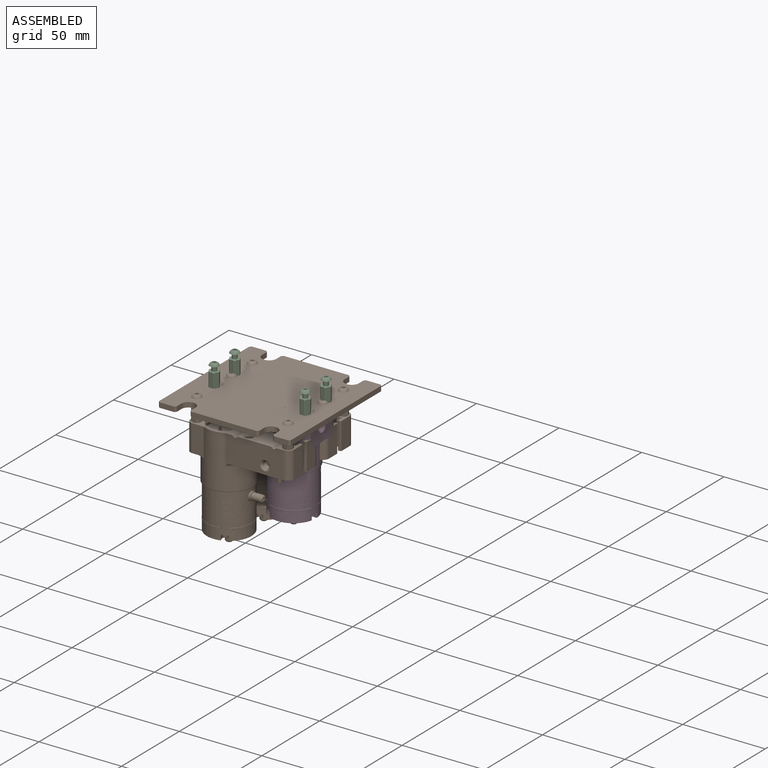
[diagram: assembled view]
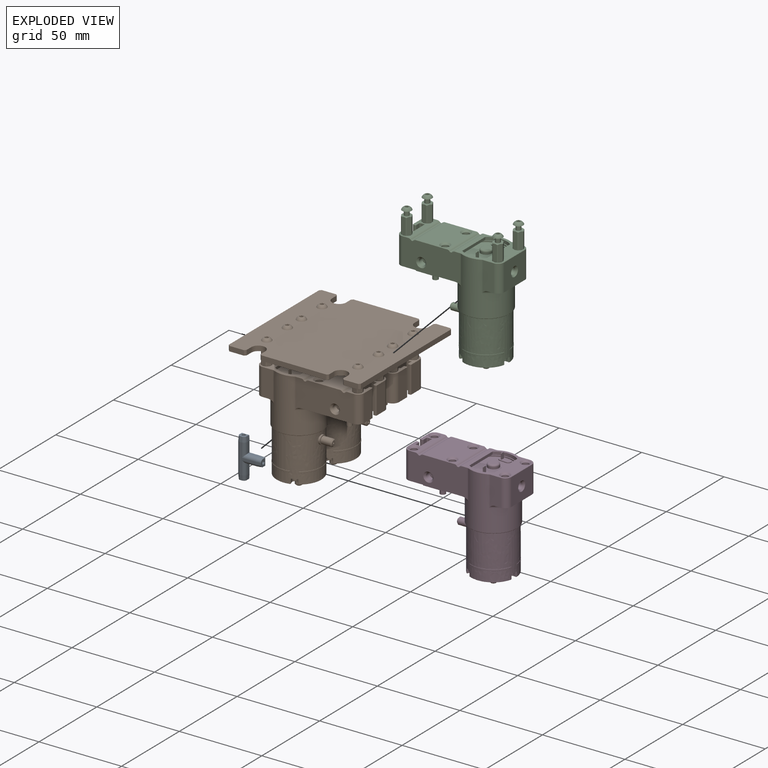
[diagram: exploded view]
GUIDED TOUR — FREECAD ASSEMBLY "pump-assembled"

This assembly has 4 components, labeled P0..P3 below (a component is one placed body or linked part; the same part can appear more than once), held together by 0 modeled joints plus 6 derived contact edges. A joint is a constraint between two components; its type names the relative motion it leaves free:
  CONTACT — a derived adjacency edge — the two components touch in the source model (clearance under 2% of the assembly's diagonal); it is measured from the geometry, not a modeled constraint.
Axis/direction vectors are unit vectors and 'through' points are millimeter coordinates, both in the assembly's world frame.

MATES
  1. CONTACT "contact_0_1": P0 <-> P1, contact direction (0.708, 0.000, 0.706) through (-18.06, -1.85, -48.28) mm (derived from contact, not a modeled constraint)
  2. CONTACT "contact_0_2": P0 <-> P2, contact direction (0.708, 0.000, 0.706) through (-16.63, 0.73, -23.82) mm (derived from contact, not a modeled constraint)
  3. CONTACT "contact_0_3": P0 <-> P3, contact direction (1.000, 0.000, 0.000) through (-15.92, -1.07, -23.82) mm (derived from contact, not a modeled constraint)
  4. CONTACT "contact_1_2": P1 <-> P2, contact direction (0.708, 0.000, 0.706) through (-13.75, 12.25, -10.38) mm (derived from contact, not a modeled constraint)
  5. CONTACT "contact_1_3": P1 <-> P3, contact direction (1.000, 0.000, 0.000) through (-13.98, 11.92, -10.63) mm (derived from contact, not a modeled constraint)
  6. CONTACT "contact_2_3": P2 <-> P3, contact direction (0.000, 0.000, -1.000) through (16.91, 7.00, -0.35) mm (derived from contact, not a modeled constraint)

ASSEMBLY ORDER
  1. P1 — the base component [order heuristic]
  2. P2 — core [order heuristic]
  3. P3 — core [order heuristic]
  4. P0 [order verified]
Order-tag legend:
  [order verified] — this step's position reverses a verified removal order: the component was checked to insert without passing through the ones already placed.
  [order heuristic] — the first 3 components form the assembly's core: parts whose collision-free extraction could not be verified, listed in mate-graph order.

Of the 4 components, 2 carry a construction recipe — the FreeCAD feature program (sketches with constraints, then the solid features that consume them) that regenerates the part from scratch, quoted from this document or from the linked companion document it references; the rest are supplied as boundary geometry only. The tour below walks the components in assembly order: each is shown spotlighted twice — in the assembled view, then in the exploded view, where a leader line traces a displaced component back to its assembled socket (components that stay in place when exploded have no leader line; saturated green if recipe-attached, orange if geometry-only; every other component desaturated gray) — followed by its recipe or geometry summary and the mates that hold it.
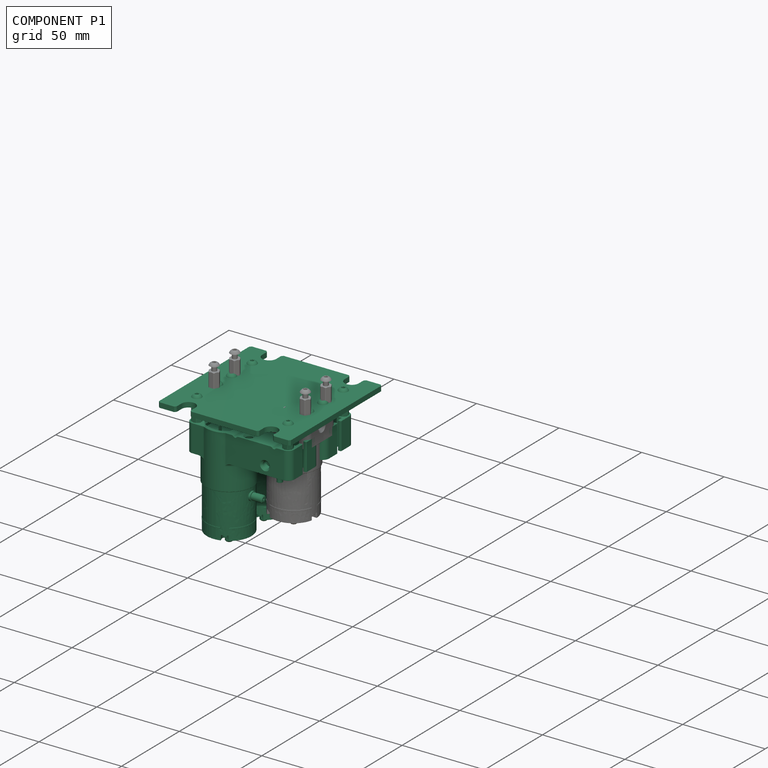
[diagram: component P1 — assembled]
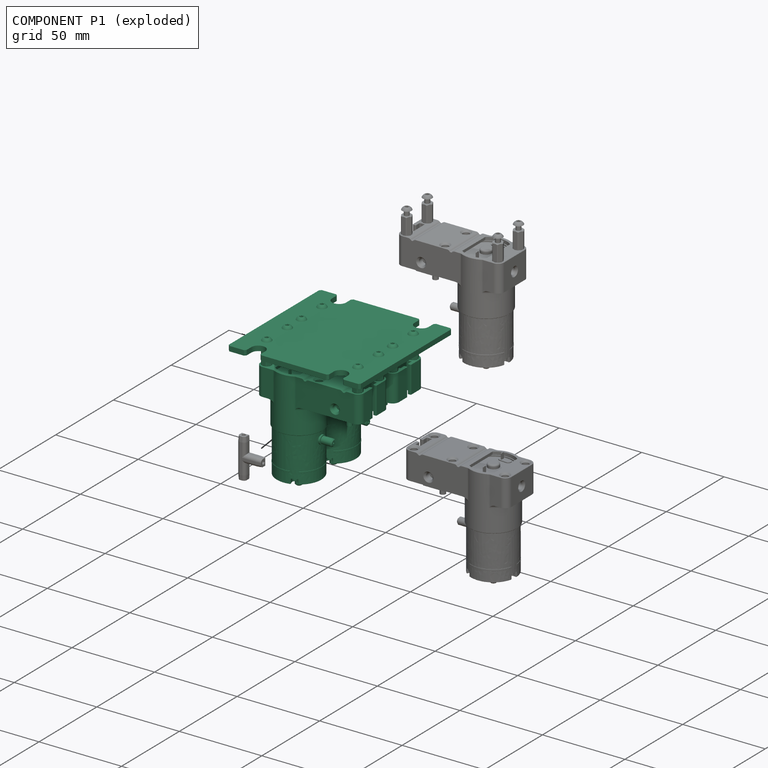
[diagram: component P1 — exploded]
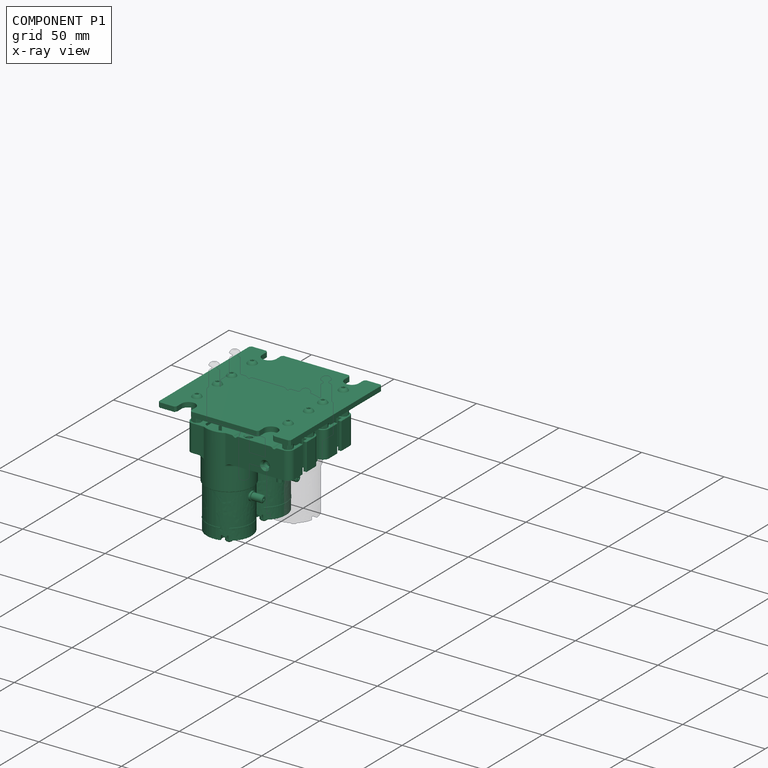
[diagram: component P1 — x-ray view]
COMPONENT P1 — recipe-attached ("TwoPumps", modeled in this document).
Held by: resting contact with P0 (derived edge); resting contact with P2 (derived edge); resting contact with P3 (derived edge).
Construction recipe (the document's own serialized feature program — sketch geometry with constraints, then the solid features built on it; lengths are millimeters unless a unit is written):

FEATURE [PartDesign::SubShapeBinder] Binder  label="Binder(pumpBoard PCB)..."
  BindCopyOnChange = 0
  BindMode = 0
  ClaimChildren = false
  Context = -> Part001 [Body.Binder.]
  EdgeTolerance = 1e-06
  FillStyle = 0
  Fuse = false
  InvalidShape = false
  MakeFace = true
  MergeEdges = true
  OffsetFill = false
  OffsetIntersection = false
  OffsetJoinType = 0
  OffsetOpenResult = false
  Outline = false
  PartialLoad = false
  Refine = true
  Relative = true
  SplitEdges = false
  Support = -> [Part__Feature019[Face5,Face5]]
  TightBound = false
  TreeRank = 0
  ValidateShape = false
  _Version = 8
FEATURE [Sketcher::SketchObject] Sketch
  ArcFitTolerance = 0
  AttachmentSupport = -> [XY_Plane001]
  ExternalBSplineMaxDegree = 0
  ExternalBSplineTolerance = 0
  ExternalGeometry = -> [Binder]
  FullyConstrained = false
  InternalTolerance = 1e-06
  InvalidShape = false
  MakeInternals = false
  MapMode = 5
  Support = -> [XY_Plane001]
  TreeRank = 0
  ValidateShape = false
  sketch-geometry (23):
    g0: LineSegment StartX=-40 StartY=40 StartZ=0 EndX=40 EndY=40 EndZ=0
    g1: LineSegment StartX=40 StartY=40 StartZ=0 EndX=40 EndY=-40 EndZ=0
    g2: LineSegment StartX=40 StartY=-40 StartZ=0 EndX=-40 EndY=-40 EndZ=0
    g3: LineSegment StartX=-40 StartY=-40 StartZ=0 EndX=-40 EndY=40 EndZ=0
    g4: LineSegment [constr] StartX=27.6225 StartY=40 StartZ=0 EndX=27.6225 EndY=-40 EndZ=0
    g5: LineSegment [constr] StartX=-27.6225 StartY=40 StartZ=0 EndX=-27.6225 EndY=-40 EndZ=0
    g6: Circle CenterX=-27.6225 CenterY=23.89 CenterZ=0 NormalX=0 NormalY=0 NormalZ=1 AngleXU=0 Radius=1.6
    g7: Circle CenterX=-27.6225 CenterY=6.11 CenterZ=0 NormalX=0 NormalY=0 NormalZ=1 AngleXU=0 Radius=1.6
    g8: Circle CenterX=27.6225 CenterY=6.11 CenterZ=0 NormalX=0 NormalY=0 NormalZ=1 AngleXU=0 Radius=1.6
    g9: Circle CenterX=27.6225 CenterY=23.89 CenterZ=0 NormalX=0 NormalY=0 NormalZ=1 AngleXU=0 Radius=1.6
    g10: Circle CenterX=-27.6225 CenterY=-6.11 CenterZ=0 NormalX=0 NormalY=0 NormalZ=1 AngleXU=0 Radius=1.6
    g11: Circle CenterX=-27.6225 CenterY=-23.89 CenterZ=0 NormalX=0 NormalY=0 NormalZ=1 AngleXU=0 Radius=1.6
    g12: Circle CenterX=27.6225 CenterY=-6.11 CenterZ=0 NormalX=0 NormalY=0 NormalZ=1 AngleXU=0 Radius=1.6
    g13: Circle CenterX=27.6225 CenterY=-23.89 CenterZ=0 NormalX=0 NormalY=0 NormalZ=1 AngleXU=0 Radius=1.6
    g14: LineSegment [constr] StartX=-27.6225 StartY=23.89 StartZ=0 EndX=27.6225 EndY=23.89 EndZ=0
    g15: LineSegment [constr] StartX=27.6225 StartY=23.89 StartZ=0 EndX=27.6225 EndY=6.11 EndZ=0
    g16: LineSegment [constr] StartX=27.6225 StartY=6.11 StartZ=0 EndX=-27.6225 EndY=6.11 EndZ=0
    g17: LineSegment [constr] StartX=-27.6225 StartY=6.11 StartZ=0 EndX=-27.6225 EndY=23.89 EndZ=0
    g18: LineSegment [constr] StartX=-27.6225 StartY=-6.11 StartZ=0 EndX=27.6225 EndY=-6.11 EndZ=0
    g19: LineSegment [constr] StartX=27.6225 StartY=-6.11 StartZ=0 EndX=27.6225 EndY=-23.89 EndZ=0
    g20: LineSegment [constr] StartX=27.6225 StartY=-23.89 StartZ=0 EndX=-27.6225 EndY=-23.89 EndZ=0
    g21: LineSegment [constr] StartX=-27.6225 StartY=-23.89 StartZ=0 EndX=-27.6225 EndY=-6.11 EndZ=0
    g22: LineSegment [constr] StartX=27.6225 StartY=8.89 StartZ=0 EndX=27.6225 EndY=-8.89 EndZ=0
  constraints (58):
    c: Coincident(g0,g1)
    c: Coincident(g1,g2)
    c: Coincident(g2,g3)
    c: Coincident(g3,g0)
    c: Horizontal(g0)
    c: Horizontal(g2)
    c: Vertical(g1)
    c: Vertical(g3)
    c: Symmetric(g1,g0,g-1)
    c: DistanceX(g0,g0) = 80
    c: DistanceY(g3,g3) = 80
    c: PointOnObject(g4,g0)
    c: PointOnObject(g4,g2)
    c: Vertical(g4)
    c: PointOnObject(g-3,g4)
    c: PointOnObject(g5,g2)
    c: Vertical(g5)
    c: Symmetric(g5,g4,g-2)
    c: DistanceY(g-4,g-3) = 17.78
    c: PointOnObject(g6,g5)
    c: PointOnObject(g7,g5)
    c: PointOnObject(g8,g4)
    c: PointOnObject(g9,g4)
    c: PointOnObject(g12,g4)
    c: PointOnObject(g13,g4)
    c: Diameter(g13) = 3.2
    c: Equal(g13,g11)
    c: Equal(g13,g10)
    c: Equal(g13,g12)
    c: Equal(g13,g8)
    c: Equal(g13,g7)
    c: Equal(g13,g6)
    c: Equal(g13,g9)
    c: Coincident(g14,g15)
    c: Coincident(g15,g16)
    c: Coincident(g16,g17)
    c: Coincident(g17,g14)
    c: Horizontal(g14)
    c: Horizontal(g16)
    c: Coincident(g14,g6)
    c: Coincident(g15,g8)
    c: Coincident(g9,g14)
    c: Coincident(g7,g16)
    c: Coincident(g18,g19)
    c: Coincident(g19,g20)
    c: Coincident(g20,g21)
    c: Coincident(g21,g18)
    c: Horizontal(g18)
    c: Horizontal(g20)
    c: Coincident(g18,g10)
    c: Coincident(g19,g13)
    c: Coincident(g12,g18)
    c: Coincident(g11,g20)
    c: Symmetric(g10,g7,g-1)
    c: Symmetric(g11,g6,g-1)
    c: Coincident(g22,g-3)
    c: DistanceY(g8,g9) = 17.78
    c: DistanceY(g-4,g8) = 15
FEATURE [PartDesign::Pad] Pad
  AddSubType = 0
  AutoTaperInnerAngle = false
  CheckUpToFaceLimits = true
  ClaimChildren = false
  Direction = (0,0,1)
  Fit = 0
  FitJoin = 0
  InnerFit = 0
  InnerFitJoin = 0
  InvalidShape = false
  Length = 3
  Length2 = 100
  Linearize = true
  NewSolid = false
  Profile = -> Sketch
  Refine = true
  Suppress = false
  TaperInnerAngle = 0
  TaperInnerAngleRev = 0
  TreeRank = 0
  Type = 0
  ValidateShape = true
  _ProfileBasedVersion = 1
FEATURE [Sketcher::SketchObject] Sketch001
  ArcFitTolerance = 0
  AttachmentSupport = -> [XY_Plane001]
  ExternalBSplineMaxDegree = 0
  ExternalBSplineTolerance = 0
  ExternalGeometry = -> [Pad]
  FullyConstrained = true
  InternalTolerance = 1e-06
  InvalidShape = false
  MakeInternals = false
  MapMode = 5
  Support = -> [XY_Plane001]
  TreeRank = 0
  ValidateShape = false
  sketch-geometry (16):
    g0: ArcOfCircle CenterX=-25 CenterY=40 CenterZ=0 NormalX=0 NormalY=0 NormalZ=1 AngleXU=0 Radius=4.25 StartAngle=9e-16 EndAngle=3.14159
    g1: ArcOfCircle CenterX=-25 CenterY=35 CenterZ=0 NormalX=0 NormalY=0 NormalZ=1 AngleXU=0 Radius=4.25 StartAngle=3.14159 EndAngle=6.28319
    g2: LineSegment StartX=-29.25 StartY=40 StartZ=0 EndX=-29.25 EndY=35 EndZ=0
    g3: LineSegment StartX=-20.75 StartY=40 StartZ=0 EndX=-20.75 EndY=35 EndZ=0
    g4: ArcOfCircle CenterX=25 CenterY=40 CenterZ=0 NormalX=0 NormalY=0 NormalZ=1 AngleXU=0 Radius=4.25 StartAngle=4e-16 EndAngle=3.14159
    g5: ArcOfCircle CenterX=25 CenterY=35 CenterZ=0 NormalX=0 NormalY=0 NormalZ=1 AngleXU=0 Radius=4.25 StartAngle=3.14159 EndAngle=6.28319
    g6: LineSegment StartX=20.75 StartY=40 StartZ=0 EndX=20.75 EndY=35 EndZ=0
    g7: LineSegment StartX=29.25 StartY=40 StartZ=0 EndX=29.25 EndY=35 EndZ=0
    g8: ArcOfCircle CenterX=25 CenterY=-40 CenterZ=0 NormalX=0 NormalY=0 NormalZ=1 AngleXU=0 Radius=4.25 StartAngle=3.14159 EndAngle=6.28319
    g9: ArcOfCircle CenterX=25 CenterY=-35 CenterZ=0 NormalX=0 NormalY=0 NormalZ=1 AngleXU=0 Radius=4.25 StartAngle=3e-16 EndAngle=3.14159
    g10: LineSegment StartX=29.25 StartY=-40 StartZ=0 EndX=29.25 EndY=-35 EndZ=0
    g11: LineSegment StartX=20.75 StartY=-40 StartZ=0 EndX=20.75 EndY=-35 EndZ=0
    g12: ArcOfCircle CenterX=-25 CenterY=-40 CenterZ=0 NormalX=0 NormalY=0 NormalZ=1 AngleXU=0 Radius=4.25 StartAngle=3.14159 EndAngle=6.28319
    g13: ArcOfCircle CenterX=-25 CenterY=-35 CenterZ=0 NormalX=0 NormalY=0 NormalZ=1 AngleXU=0 Radius=4.25 StartAngle=1e-16 EndAngle=3.14159
    g14: LineSegment StartX=-20.75 StartY=-40 StartZ=0 EndX=-20.75 EndY=-35 EndZ=0
    g15: LineSegment StartX=-29.25 StartY=-40 StartZ=0 EndX=-29.25 EndY=-35 EndZ=0
  constraints (37):
    c: Tangent(g0,g3) = 1.5708
    c: Tangent(g0,g2) = -1.5708
    c: Tangent(g2,g1) = -1.5708
    c: Tangent(g3,g1) = 1.5708
    c: Vertical(g2)
    c: Equal(g0,g1)
    c: PointOnObject(g0,g-3)
    c: Tangent(g4,g7) = 1.5708
    c: Tangent(g4,g6) = -1.5708
    c: Tangent(g6,g5) = -1.5708
    c: Tangent(g7,g5) = 1.5708
    c: Vertical(g6)
    c: Equal(g4,g5)
    c: PointOnObject(g4,g-3)
    c: Tangent(g8,g11) = 1.5708
    c: Tangent(g8,g10) = -1.5708
    c: Tangent(g10,g9) = -1.5708
    c: Tangent(g11,g9) = 1.5708
    c: Vertical(g10)
    c: Equal(g8,g9)
    c: PointOnObject(g8,g-4)
    c: Tangent(g12,g15) = 1.5708
    c: Tangent(g12,g14) = -1.5708
    c: Tangent(g14,g13) = -1.5708
    c: Tangent(g15,g13) = 1.5708
    c: Vertical(g14)
    c: Equal(g12,g13)
    c: PointOnObject(g12,g-4)
    c: Equal(g1,g13)
    c: Equal(g13,g9)
    c: Equal(g9,g5)
    c: Symmetric(g1,g5,g-2)
    c: Symmetric(g13,g1,g-1)
    c: Symmetric(g9,g13,g-2)
    c: Diameter(g1) = 8.5
    c: DistanceY(g1,g0) = 5
    c: DistanceX(g-3,g0) = 15
FEATURE [PartDesign::Pocket] Pocket
  AddSubType = 1
  AutoTaperInnerAngle = false
  BaseFeature = -> Pad
  CheckUpToFaceLimits = true
  ClaimChildren = false
  Direction = (1,1,1)
  Fit = 0
  FitJoin = 0
  InnerFit = 0
  InnerFitJoin = 0
  InvalidShape = false
  Length = 5
  Length2 = 100
  Linearize = true
  NewSolid = false
  Profile = -> Sketch001
  Refine = true
  Reversed = true
  Suppress = false
  TaperInnerAngle = 0
  TaperInnerAngleRev = 0
  TreeRank = 0
  Type = 0
  ValidateShape = true
  _ProfileBasedVersion = 1
  _Version = 1
FEATURE [PartDesign::Chamfer] Chamfer
  AddSubType = 0
  Angle = 45
  Base = -> Pocket [Edge76,Edge73,Edge72,Edge69,Edge2,Edge62,Edge63,Edge66]
  BaseFeature = -> Pocket
  ChamferType = 0
  FlipDirection = false
  InvalidShape = false
  NewSolid = false
  Refine = true
  Size = 1
  Size2 = 1
  SupportTransform = false
  Suppress = false
  TreeRank = 0
  UseAllEdges = false
  ValidateShape = true
FEATURE [PartDesign::Chamfer] Chamfer001
  AddSubType = 0
  Angle = 45
  Base = -> Chamfer [Edge97,Edge99,Edge42,Edge3]
  BaseFeature = -> Chamfer
  ChamferType = 0
  FlipDirection = false
  InvalidShape = false
  NewSolid = false
  Refine = true
  Size = 1
  Size2 = 1
  SupportTransform = false
  Suppress = false
  TreeRank = 0
  UseAllEdges = false
  ValidateShape = true
FEATURE [PartDesign::Body] Body  label="carterTwoPump"
  AutoGroupSolids = false
  ClaimAllChildren = false
  ExportMode = 0
  Group = -> [Binder,Sketch,Pad,Sketch001,Pocket,Chamfer,Chamfer001]
  InvalidShape = false
  Origin = -> Origin022
  SingleSolid = true
  Tip = -> Chamfer001
  TreeRank = 0
  ValidateShape = false
  _ExportChildren = -> [Binder,Pad,Pocket,Chamfer,Chamfer001]
  _GroupVersion = 1
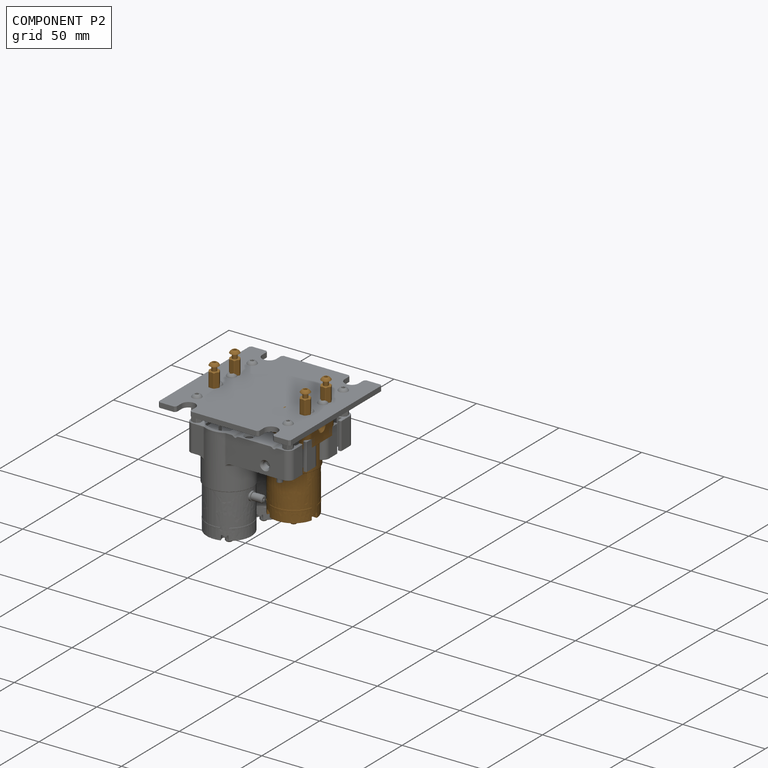
[diagram: component P2 — assembled]
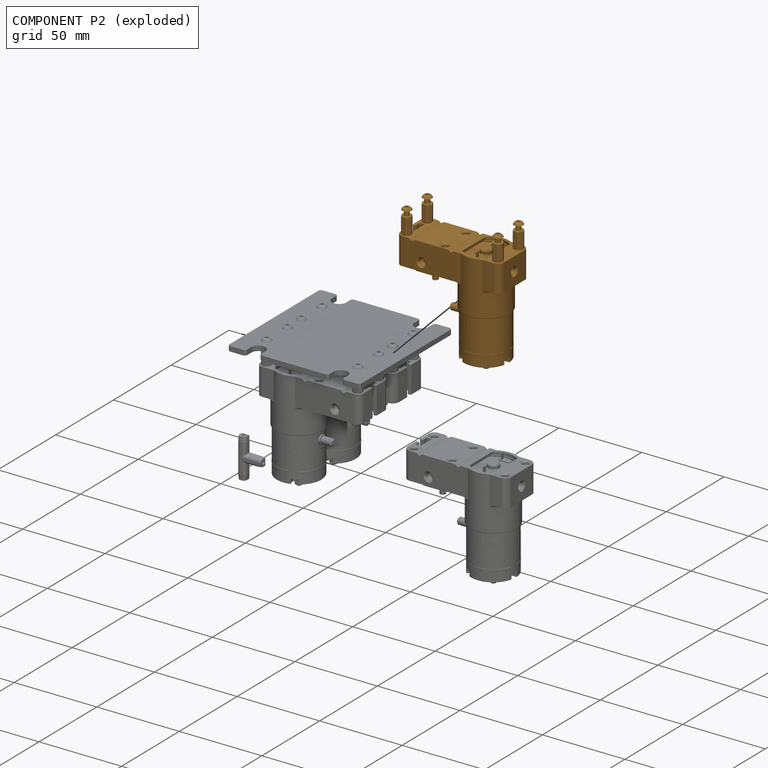
[diagram: component P2 — exploded]
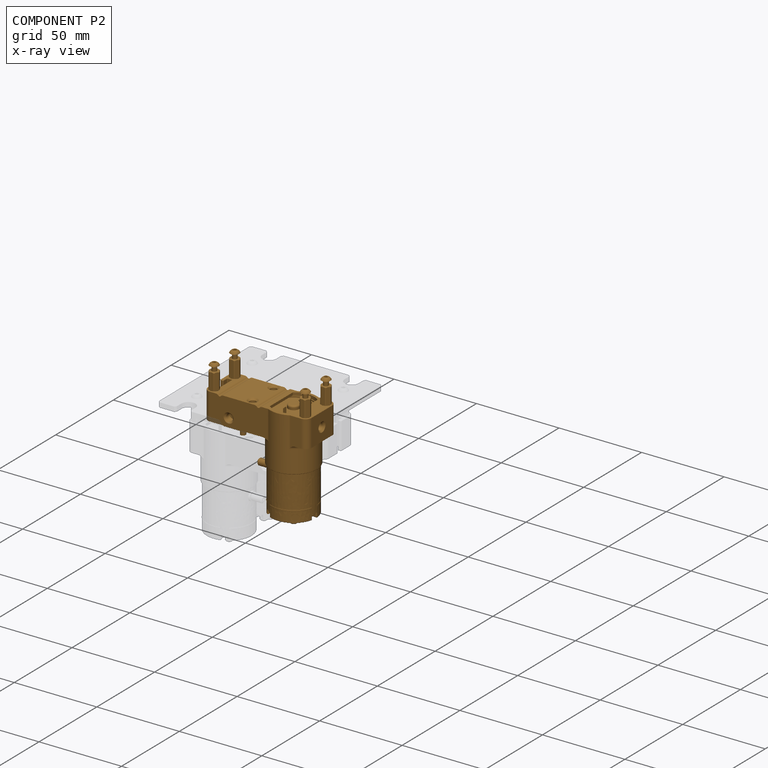
[diagram: component P2 — x-ray view]
COMPONENT P2 — geometry summary ("OnePumps"; no construction recipe available for this part):
  bounding box: 80.4 x 62.9 x 28.5 mm
  tessellated surface: 169,796 triangles
  volume: 50732 mm^3 (35% of its bounding box)
  symmetry: mirror-symmetric across its y mid-plane
Held by: resting contact with P0 (derived edge); resting contact with P1 (derived edge); resting contact with P3 (derived edge).
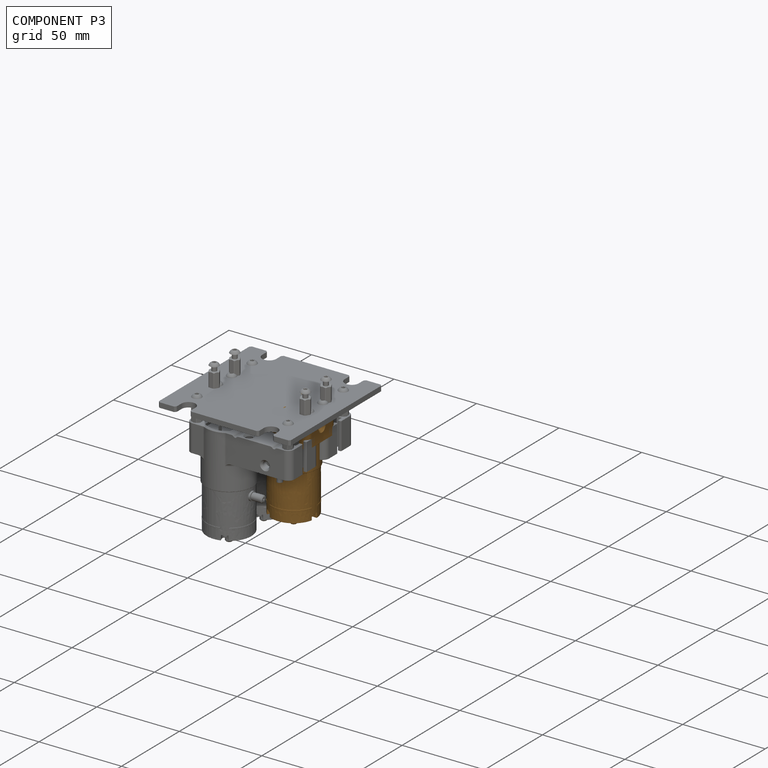
[diagram: component P3 — assembled]
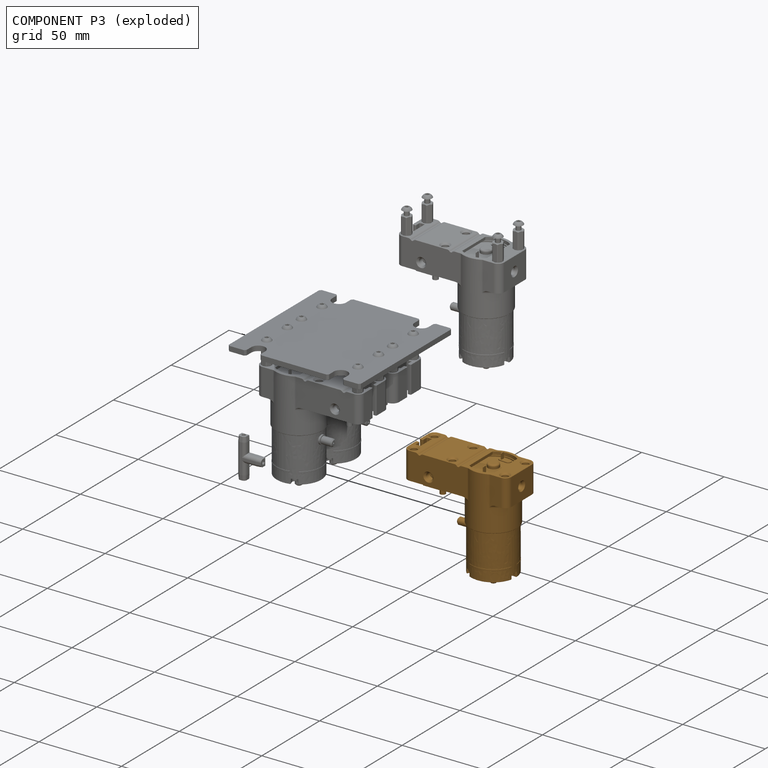
[diagram: component P3 — exploded]
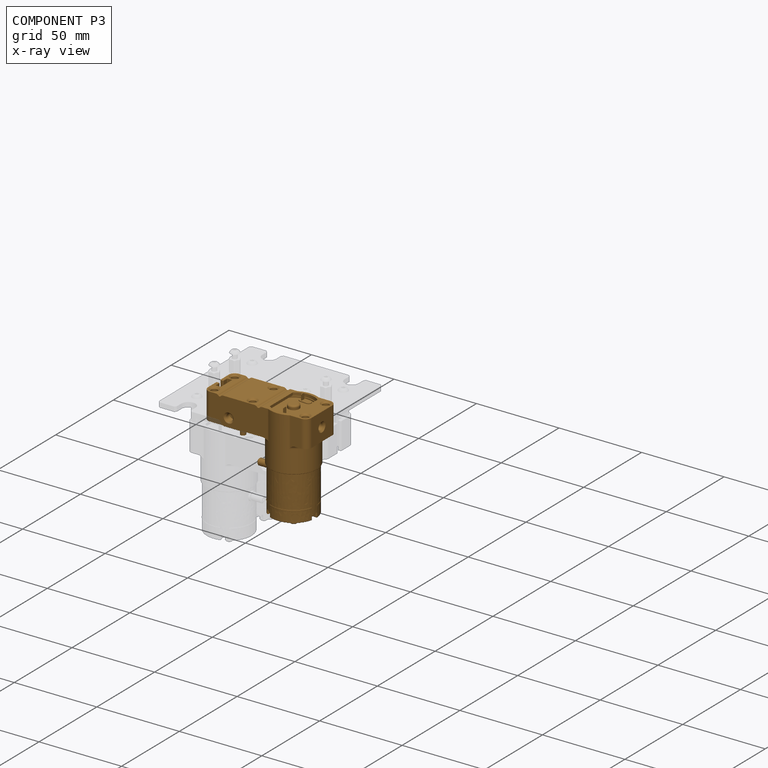
[diagram: component P3 — x-ray view]
COMPONENT P3 — geometry summary ("pumpBoard 1"; no construction recipe available for this part):
  bounding box: 67.3 x 62.9 x 28.5 mm
  tessellated surface: 135,028 triangles
  volume: 49634 mm^3 (41% of its bounding box)
  symmetry: mirror-symmetric across its y mid-plane
Held by: resting contact with P0 (derived edge); resting contact with P1 (derived edge); resting contact with P2 (derived edge).
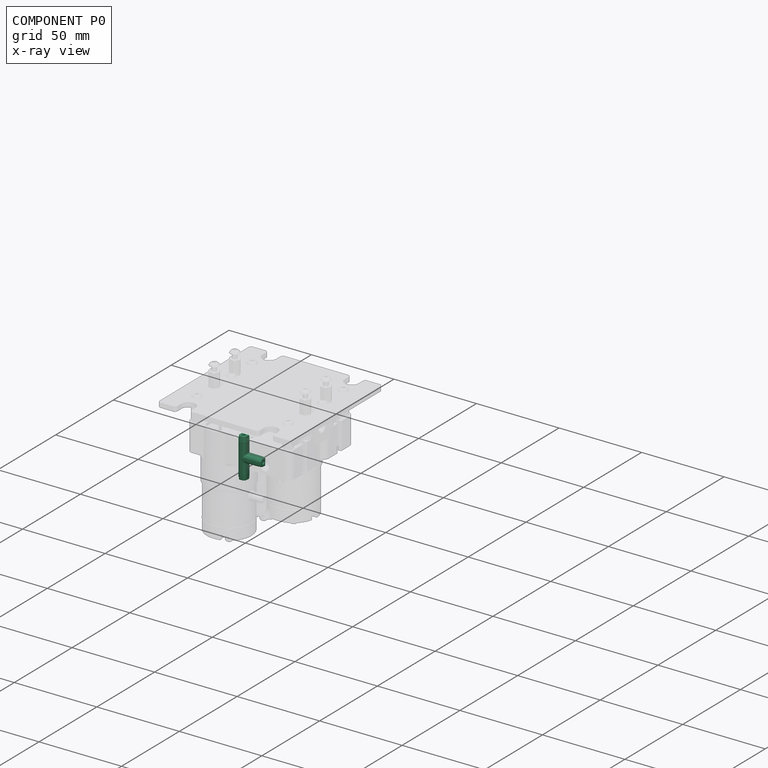
[diagram: component P0 — x-ray view]
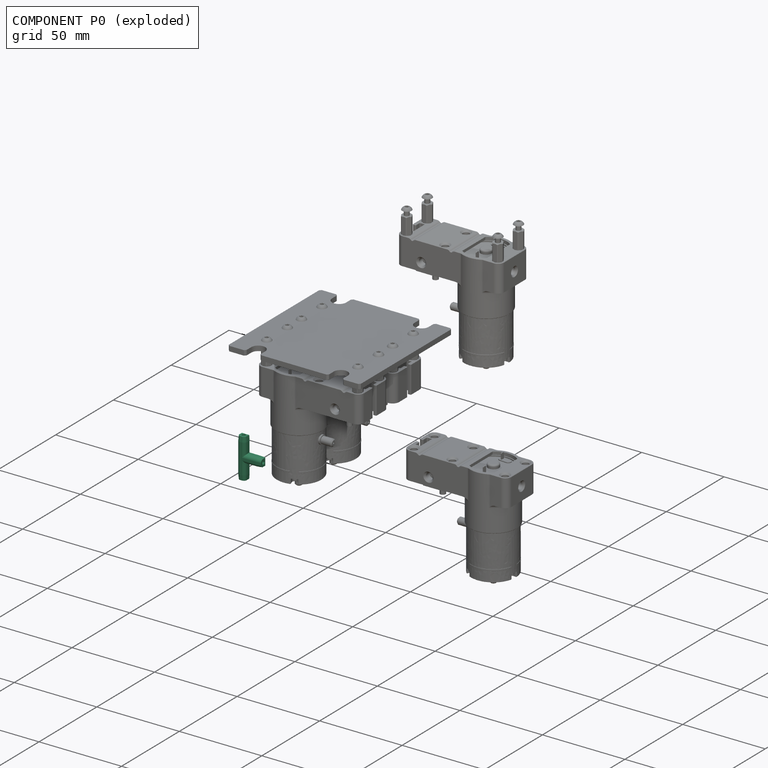
[diagram: component P0 — exploded]
COMPONENT P0 — recipe-attached ("T-Connector", modeled in this document).
Held by: resting contact with P1 (derived edge); resting contact with P2 (derived edge); resting contact with P3 (derived edge).
Construction recipe (the document's own serialized feature program — sketch geometry with constraints, then the solid features built on it; lengths are millimeters unless a unit is written):

FEATURE [Sketcher::SketchObject] Sketch002
  ArcFitTolerance = 0
  AttachmentSupport = -> [XY_Plane002]
  ExternalBSplineMaxDegree = 0
  ExternalBSplineTolerance = 0
  FullyConstrained = true
  InternalTolerance = 1e-06
  InvalidShape = false
  MakeInternals = false
  MapMode = 5
  Support = -> [XY_Plane002]
  TreeRank = 14
  ValidateShape = false
  sketch-geometry (8):
    g0: LineSegment StartX=-12 StartY=2.5 StartZ=0 EndX=-2.5 EndY=2.5 EndZ=0
    g1: LineSegment StartX=-2.5 StartY=2.5 StartZ=0 EndX=-2.5 EndY=12 EndZ=0
    g2: LineSegment StartX=-2.5 StartY=12 StartZ=0 EndX=2.5 EndY=12 EndZ=0
    g3: LineSegment StartX=2.5 StartY=12 StartZ=0 EndX=2.5 EndY=-12 EndZ=0
    g4: LineSegment StartX=2.5 StartY=-12 StartZ=0 EndX=-2.5 EndY=-12 EndZ=0
    g5: LineSegment StartX=-2.5 StartY=-12 StartZ=0 EndX=-2.5 EndY=-2.5 EndZ=0
    g6: LineSegment StartX=-2.5 StartY=-2.5 StartZ=0 EndX=-12 EndY=-2.5 EndZ=0
    g7: LineSegment StartX=-12 StartY=-2.5 StartZ=0 EndX=-12 EndY=2.5 EndZ=0
  constraints (22):
    c: Horizontal(g0)
    c: Coincident(g0,g1)
    c: Vertical(g1)
    c: Coincident(g1,g2)
    c: Coincident(g2,g3)
    c: Vertical(g3)
    c: Coincident(g3,g4)
    c: Horizontal(g4)
    c: Coincident(g4,g5)
    c: Vertical(g5)
    c: Coincident(g5,g6)
    c: Horizontal(g6)
    c: Coincident(g6,g7)
    c: Coincident(g7,g0)
    c: Symmetric(g1,g2,g-2)
    c: Symmetric(g6,g0,g-1)
    c: Equal(g4,g2)
    c: Equal(g7,g2)
    c: DistanceX(g0,g-1) = 12
    c: DistanceY(g7,g7) = 5
    c: DistanceY(g4,g-1) = 12
    c: DistanceY(g-1,g2) = 12
FEATURE [PartDesign::Pad] Pad001
  AddSubType = 0
  AlongSketchNormal = false
  AutoTaperInnerAngle = false
  CheckUpToFaceLimits = true
  ClaimChildren = false
  Direction = (0,0,1)
  Fit = 0
  FitJoin = 0
  InnerFit = 0
  InnerFitJoin = 0
  InvalidShape = false
  Length = 5
  Length2 = 100
  Linearize = true
  Midplane = true
  NewSolid = false
  Profile = -> Sketch002
  Refine = true
  Suppress = false
  TaperInnerAngle = 0
  TaperInnerAngleRev = 0
  TreeRank = 15
  Type = 0
  ValidateShape = true
  _ProfileBasedVersion = 1
FEATURE [PartDesign::Chamfer] Chamfer002
  AddSubType = 0
  Angle = 60
  Base = -> Pad001 [Face9]
  BaseFeature = -> Pad001
  ChamferType = 2
  FlipDirection = false
  InvalidShape = false
  NewSolid = false
  Refine = true
  Size = 1
  Size2 = 1
  SupportTransform = false
  Suppress = false
  TreeRank = 16
  UseAllEdges = false
  ValidateShape = true
FEATURE [PartDesign::Fillet] Fillet
  AddSubType = 0
  Base = -> Chamfer002 [Edge15,Edge13,Edge11,Edge3,Edge16]
  BaseFeature = -> Chamfer002
  InvalidShape = false
  NewSolid = false
  Radius = 1.99
  Refine = true
  SupportTransform = false
  Suppress = false
  TreeRank = 17
  UseAllEdges = false
  ValidateShape = true
FEATURE [Sketcher::SketchObject] Sketch003
  ArcFitTolerance = 0
  AttachmentSupport = -> [YZ_Plane002]
  ExternalBSplineMaxDegree = 0
  ExternalBSplineTolerance = 0
  FullyConstrained = true
  InternalTolerance = 1e-06
  InvalidShape = false
  MakeInternals = false
  MapMode = 5
  Placement = pos=(0,0,0) rot=(0.57735,0.57735,0.57735;2.0944rad)
  Support = -> [YZ_Plane002]
  TreeRank = 18
  ValidateShape = false
  sketch-geometry (1):
    g0: Circle CenterX=0 CenterY=0 CenterZ=0 NormalX=0 NormalY=0 NormalZ=1 AngleXU=0 Radius=1
  constraints (2):
    c: Coincident(g0,g-1)
    c: Diameter(g0) = 2
FEATURE [PartDesign::Pocket] Pocket001
  AddSubType = 1
  AutoTaperInnerAngle = false
  BaseFeature = -> Fillet
  CheckUpToFaceLimits = true
  ClaimChildren = false
  Direction = (1,1,1)
  Fit = 0
  FitJoin = 0
  InnerFit = 0
  InnerFitJoin = 0
  InvalidShape = false
  Length = 5
  Length2 = 100
  Linearize = true
  NewSolid = false
  Profile = -> Sketch003
  Refine = true
  Suppress = false
  TaperInnerAngle = 0
  TaperInnerAngleRev = 0
  TreeRank = 19
  Type = 1
  ValidateShape = true
  _ProfileBasedVersion = 1
  _Version = 1
FEATURE [Sketcher::SketchObject] Sketch004
  ArcFitTolerance = 0
  AttachmentSupport = -> [XZ_Plane002]
  ExternalBSplineMaxDegree = 0
  ExternalBSplineTolerance = 0
  FullyConstrained = true
  InternalTolerance = 1e-06
  InvalidShape = false
  MakeInternals = false
  MapMode = 5
  Placement = pos=(0,0,0) rot=(1,0,0;1.5708rad)
  Support = -> [XZ_Plane002]
  TreeRank = 20
  ValidateShape = false
  sketch-geometry (1):
    g0: Circle CenterX=0 CenterY=0 CenterZ=0 NormalX=0 NormalY=0 NormalZ=1 AngleXU=0 Radius=1
  constraints (2):
    c: Coincident(g0,g-1)
    c: Diameter(g0) = 2
FEATURE [PartDesign::Pocket] Pocket002
  AddSubType = 1
  AutoTaperInnerAngle = false
  BaseFeature = -> Pocket001
  CheckUpToFaceLimits = true
  ClaimChildren = false
  Direction = (1,1,1)
  Fit = 0
  FitJoin = 0
  InnerFit = 0
  InnerFitJoin = 0
  InvalidShape = false
  Length = 5
  Length2 = 100
  Linearize = true
  Midplane = true
  NewSolid = false
  Profile = -> Sketch004
  Refine = true
  Suppress = false
  TaperInnerAngle = 0
  TaperInnerAngleRev = 0
  TreeRank = 21
  Type = 1
  ValidateShape = true
  _ProfileBasedVersion = 1
  _Version = 1
FEATURE [PartDesign::Chamfer] Chamfer003
  AddSubType = 0
  Angle = 45
  Base = -> Pocket002 [Edge45,Edge9]
  BaseFeature = -> Pocket002
  ChamferType = 1
  FlipDirection = false
  InvalidShape = false
  NewSolid = false
  Refine = true
  Size = 0.3
  Size2 = 3
  SupportTransform = false
  Suppress = false
  TreeRank = 22
  UseAllEdges = false
  ValidateShape = true
FEATURE [PartDesign::Chamfer] Chamfer004
  AddSubType = 0
  Angle = 45
  Base = -> Chamfer003 [Edge53]
  BaseFeature = -> Chamfer003
  ChamferType = 1
  FlipDirection = false
  InvalidShape = false
  NewSolid = false
  Refine = true
  Size = 3
  Size2 = 0.3
  SupportTransform = false
  Suppress = false
  TreeRank = 24
  UseAllEdges = false
  ValidateShape = true
FEATURE [PartDesign::Body] Body001  label="T-Connector"
  AutoGroupSolids = false
  ClaimAllChildren = false
  ExportMode = 0
  Group = -> [Sketch002,Pad001,Chamfer002,Fillet,Sketch003,Pocket001,Sketch004,Pocket002,Chamfer003,Chamfer004]
  InvalidShape = false
  Origin = -> Origin024
  Placement = pos=(-16,0,-36) rot=(0,0.707107,-0.707107;3.14159rad)
  SingleSolid = true
  Tip = -> Chamfer004
  TreeRank = 23
  ValidateShape = false
  _ExportChildren = -> [Pad001,Chamfer002,Fillet,Pocket001,Pocket002,Chamfer003,Chamfer004]
  _GroupVersion = 1
PROVENANCE & LICENSES
Assembly and component geometry: a FreeCAD (.FCStd) document from a public repository crawl; components, placements and joints were extracted with FreeCAD and each solid tessellated.
Construction recipes: the document's own serialized feature recipes (and, for linked parts, the recipes of companion documents from the same project).
License: as declared in the source repository (recorded in the dataset sidecar).
Joints: native FreeCAD joints and A2plus constraints are mapped to standard mate types; edges marked 'derived from contact' connect touching components and are measured from the geometry, not modeled.
Verification: 2 of this assembly's 4 components carry a construction recipe (2 from this document itself); the rest are geometry-only. Every component's tessellation passed the extraction mesh gates (mesh-volume checksum against the B-rep where available, bounding-box inflation <= 2%).
Renders: orthographic iso camera (az 35 / el 25); the floor grid conveys scale (grid pitch printed in each image; no ruler). In the exploded view each component is displaced by its stored offset vector: the offsets alone carry the explosion direction (mate normal/axis signs are not orientation cues and do not encode it), and separation distances are assigned per mate-chain, not proportionally to assembly-order depth.
